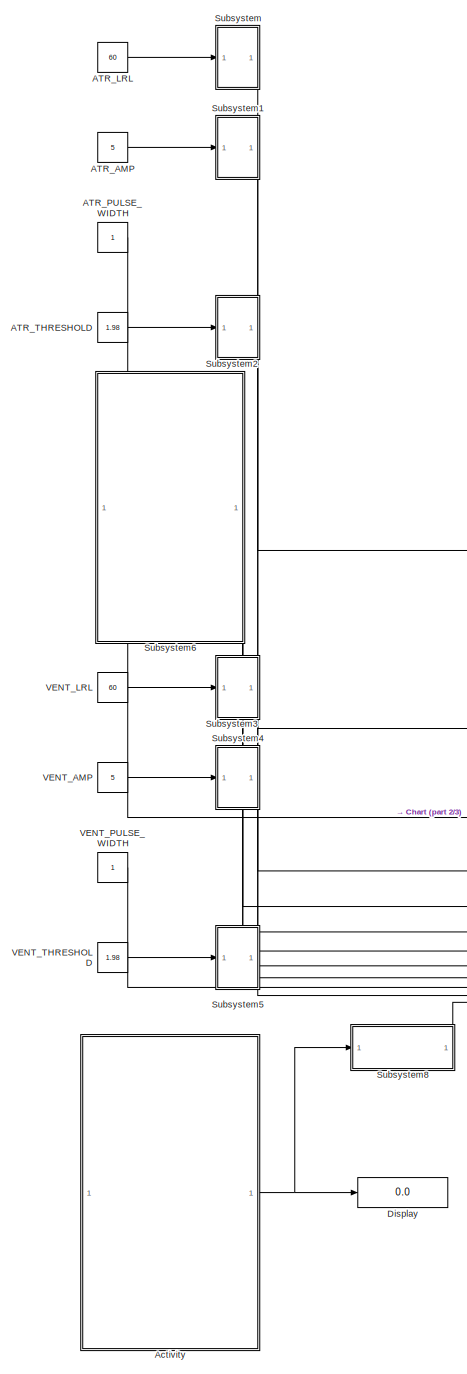
[diagram: root canvas - part 1/3, left side, full height]
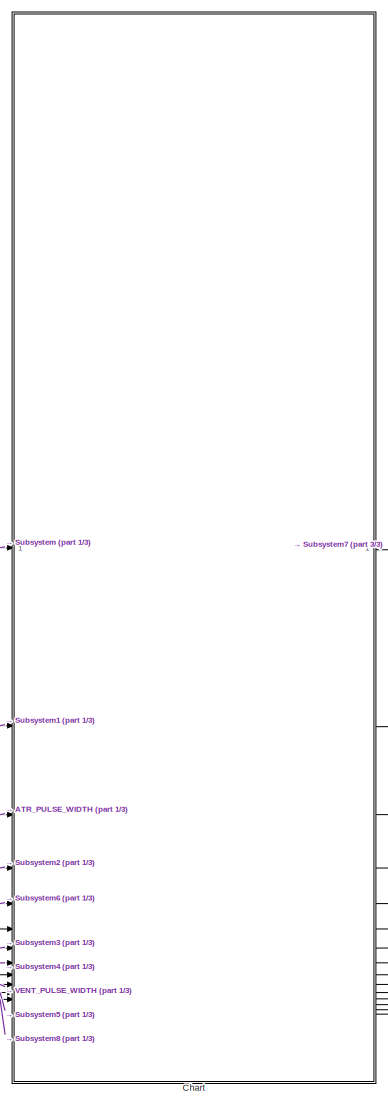
[diagram: root canvas - part 2/3, center side, full height]
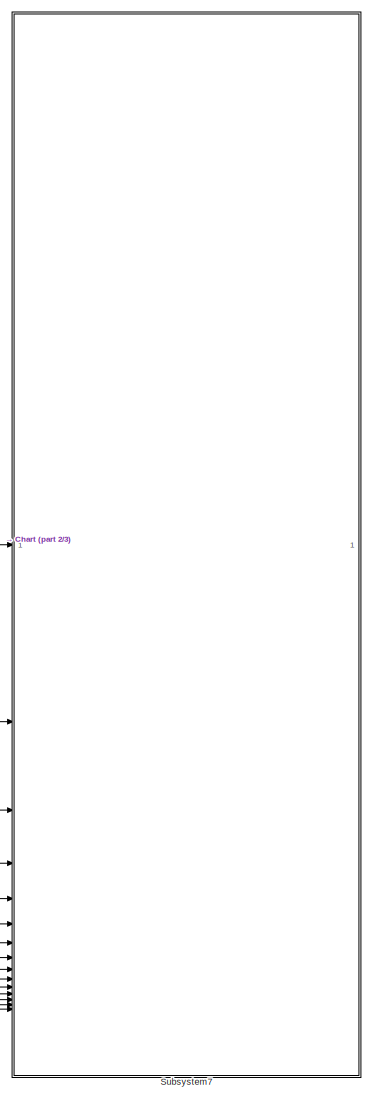
[diagram: root canvas - part 3/3, right side, full height]
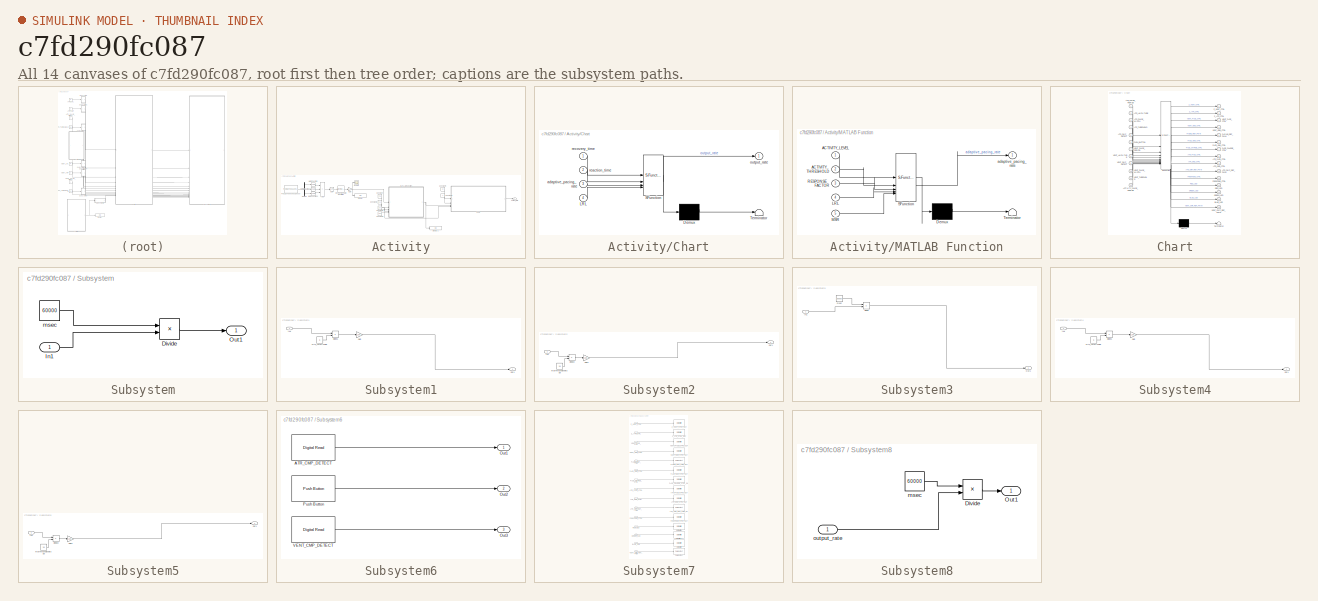
[diagram: thumbnail index - all 14 canvases of the model, root first then tree order]
MODEL slx_c7fd290fc087
KIND model
CONFIG AbsTol = auto
CONFIG EnableMultiTasking = on
CONFIG FixedStep = 1e-3
CONFIG MaxStep = auto
CONFIG MinStep = auto
CONFIG RelTol = 1e-3
CONFIG SampleTimeConstraint = Unconstrained
CONFIG SolverName = FixedStepAuto
CONFIG StartTime = 0.0
CONFIG StopTime = 30
BLOCK [Constant] ATR_AMP
  Value = 5
BLOCK [Constant] ATR_LRL
  Value = 60
BLOCK [Constant] ATR_PULSE_WIDTH
BLOCK [Constant] ATR_THRESHOLD
  Value = 1.98
BLOCK [SubSystem] Activity
BLOCK [Sum] Activity/Add
  IconShape = rectangular
  Inputs = +++
BLOCK [SubSystem] Activity/Chart
  ErrorFcn = Stateflow.Translate.translate
  PermitHierarchicalResolution = ExplicitOnly
  SFBlockType = Chart
  TreatAsAtomicUnit = on
BLOCK [Demux] Activity/Chart/ Demux 
  Outputs = 1
BLOCK [S-Function] Activity/Chart/ SFunction 
  EnableBusSupport = on
  FunctionName = sf_sfun
  PortCounts = [4 2]
  SFcnIsStateOwnerBlock = off
  SFunctionDeploymentMode = off
  Tag = Stateflow S-Function 1
BLOCK [Terminator] Activity/Chart/ Terminator 
BLOCK [Inport] Activity/Chart/LRL
  Port = 4
BLOCK [Inport] Activity/Chart/adaptive_pacing_rate
  Port = 3
BLOCK [Outport] Activity/Chart/output_rate
BLOCK [Inport] Activity/Chart/reaction_time
  Port = 2
BLOCK [Inport] Activity/Chart/recovery_time
BLOCK [Constant] Activity/Constant
  Value = 0.5
BLOCK [Constant] Activity/Constant1
  Value = 16
BLOCK [Constant] Activity/Constant2
  Value = 60
BLOCK [Constant] Activity/Constant3
  Value = 180
BLOCK [Constant] Activity/Constant4
  Value = 10
BLOCK [Constant] Activity/Constant5
BLOCK [Demux] Activity/Demux
  Outputs = 3
BLOCK [Display] Activity/Display
  Decimation = 1
BLOCK [Display] Activity/Display1
  Decimation = 1
BLOCK [Reference] Activity/FXOS8700 6-Axes Sensor  REF=frdmk64flib/FXOS8700 6-Axes Sensor
  SourceBlock = frdmk64flib/FXOS8700 6-Axes Sensor
  SourceType = freedomk64f.fxos8700
BLOCK [Gain] Activity/Gain
  Gain = 50
BLOCK [SubSystem] Activity/MATLAB Function
  ErrorFcn = Stateflow.Translate.translate
  PermitHierarchicalResolution = ExplicitOnly
  SFBlockType = MATLAB Function
  TreatAsAtomicUnit = on
BLOCK [Demux] Activity/MATLAB Function/ Demux 
  Outputs = 1
BLOCK [S-Function] Activity/MATLAB Function/ SFunction 
  EnableBusSupport = on
  FunctionName = sf_sfun
  PortCounts = [5 2]
  SFcnIsStateOwnerBlock = off
  SFunctionDeploymentMode = off
  Tag = Stateflow S-Function 2
BLOCK [Terminator] Activity/MATLAB Function/ Terminator 
BLOCK [Inport] Activity/MATLAB Function/ACTIVITY_LEVEL
BLOCK [Inport] Activity/MATLAB Function/ACTIVITY_THRESHOLD
  Port = 2
BLOCK [Inport] Activity/MATLAB Function/LRL
  Port = 4
BLOCK [Inport] Activity/MATLAB Function/MSR
  Port = 5
BLOCK [Inport] Activity/MATLAB Function/RESPONSE_FACTOR
  Port = 3
BLOCK [Outport] Activity/MATLAB Function/adaptive_pacing_rate
BLOCK [Math] Activity/Math Function
  Operator = square
BLOCK [Math] Activity/Math Function1
  Operator = square
BLOCK [Math] Activity/Math Function2
  Operator = square
BLOCK [Reference] Activity/Moving Standard Deviation  REF=dspstat3/Moving
Standard
Deviation
  SourceBlock = dspstat3/Moving\nStandard\nDeviation
  SourceType = dsp.simulink.MovingStandardDeviation
BLOCK [Scope] Activity/Scope
  Floating = off
  NumInputPorts = 1
  ScopeSpecificationString = Simulink.scopes.TimeScopeBlockCfg('CurrentConfiguration', extmgr.ConfigurationSet(extmgr.Configuration('Core','General UI',true),extmgr.Configuration('Core','Source UI',true),extmgr.Configuration('Sources','WiredSimulink',true),extmgr.Configuration('Visuals','Time Domain',true),extmgr.Configuration('Tools','Plot Navigation',true),extmgr.Configuration('Tools','Measurements',true)),'Version','2024a'...<+1ch>
BLOCK [Sqrt] Activity/Sqrt
BLOCK [Outport] Activity/output_rate
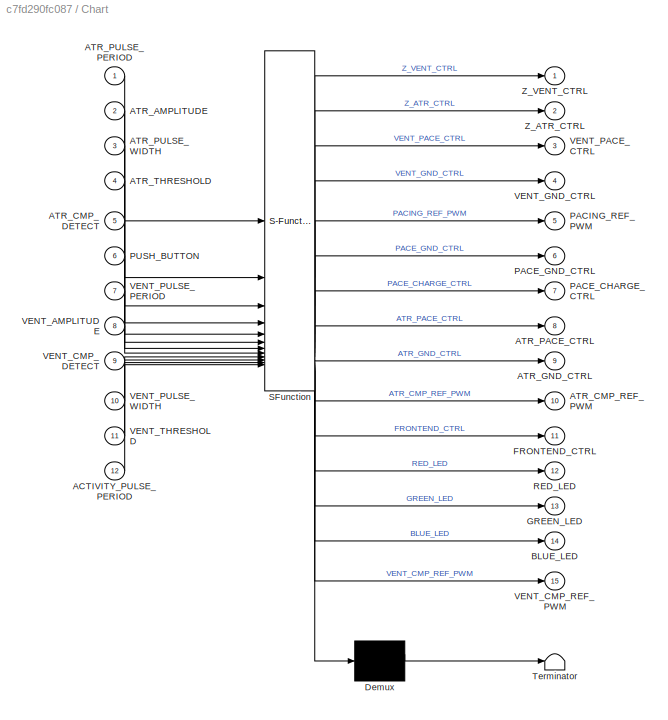
BLOCK [SubSystem] Chart
  ErrorFcn = Stateflow.Translate.translate
  PermitHierarchicalResolution = ExplicitOnly
  PortSchema = {"entries":[{"content":{"sides":[{"content":{"connectorIds":["In1","In2","In3","In4","In5","In6","In9","In7","In8","In10","In11","In12"]},"type":"ConnectorPlacement.EquallySpacedRectSide","uuid":"1d074b9c-7cc8-4198-85a6-5618993573f0"},{"content":{"connectorIds":["Out1","Out2","Out3","Out4","Out5","Out6","Out7","Out8","Out9","Out10","Out11","Out12","Out13","Out14","Out15"],"side":"RIGHT"},"type":"C...<+395ch>
  SFBlockType = Chart
  TreatAsAtomicUnit = on
BLOCK [Demux] Chart/ Demux 
  Outputs = 1
BLOCK [S-Function] Chart/ SFunction 
  EnableBusSupport = on
  FunctionName = sf_sfun
  PortCounts = [12 16]
  SFcnIsStateOwnerBlock = off
  SFunctionDeploymentMode = off
  Tag = Stateflow S-Function 3
BLOCK [Terminator] Chart/ Terminator 
BLOCK [Inport] Chart/ACTIVITY_PULSE_PERIOD
  Port = 12
BLOCK [Inport] Chart/ATR_AMPLITUDE
  Port = 2
BLOCK [Inport] Chart/ATR_CMP_DETECT
  Port = 5
BLOCK [Outport] Chart/ATR_CMP_REF_PWM
  Port = 10
BLOCK [Outport] Chart/ATR_GND_CTRL
  Port = 9
BLOCK [Outport] Chart/ATR_PACE_CTRL
  Port = 8
BLOCK [Inport] Chart/ATR_PULSE_PERIOD
BLOCK [Inport] Chart/ATR_PULSE_WIDTH
  Port = 3
BLOCK [Inport] Chart/ATR_THRESHOLD
  Port = 4
BLOCK [Outport] Chart/BLUE_LED
  Port = 14
BLOCK [Outport] Chart/FRONTEND_CTRL
  Port = 11
BLOCK [Outport] Chart/GREEN_LED
  Port = 13
BLOCK [Outport] Chart/PACE_CHARGE_CTRL
  Port = 7
BLOCK [Outport] Chart/PACE_GND_CTRL
  Port = 6
BLOCK [Outport] Chart/PACING_REF_PWM
  Port = 5
BLOCK [Inport] Chart/PUSH_BUTTON
  Port = 6
BLOCK [Outport] Chart/RED_LED
  Port = 12
BLOCK [Inport] Chart/VENT_AMPLITUDE
  Port = 8
BLOCK [Inport] Chart/VENT_CMP_DETECT
  Port = 9
BLOCK [Outport] Chart/VENT_CMP_REF_PWM
  Port = 15
BLOCK [Outport] Chart/VENT_GND_CTRL
  Port = 4
BLOCK [Outport] Chart/VENT_PACE_CTRL
  Port = 3
BLOCK [Inport] Chart/VENT_PULSE_PERIOD
  Port = 7
BLOCK [Inport] Chart/VENT_PULSE_WIDTH
  Port = 10
BLOCK [Inport] Chart/VENT_THRESHOLD
  Port = 11
BLOCK [Outport] Chart/Z_ATR_CTRL
  Port = 2
BLOCK [Outport] Chart/Z_VENT_CTRL
BLOCK [Display] Display
  Decimation = 1
BLOCK [SubSystem] Subsystem
BLOCK [Product] Subsystem/Divide
  Inputs = */
BLOCK [Inport] Subsystem/In1
BLOCK [Outport] Subsystem/Out1
BLOCK [Constant] Subsystem/msec
  Value = 60000
BLOCK [SubSystem] Subsystem1
BLOCK [Product] Subsystem1/Divide1
  Inputs = */
BLOCK [Gain] Subsystem1/Gain
  Gain = 100
BLOCK [Inport] Subsystem1/In1
BLOCK [Constant] Subsystem1/MAX_AMPLITUDE
  Value = 5
BLOCK [Outport] Subsystem1/Out1
BLOCK [SubSystem] Subsystem2
BLOCK [Product] Subsystem2/Divide2
  Inputs = */
BLOCK [Gain] Subsystem2/Gain1
  Gain = 100
BLOCK [Inport] Subsystem2/In1
BLOCK [Outport] Subsystem2/Out1
BLOCK [Constant] Subsystem2/maxThresholdVoltage
  Value = 3.3
BLOCK [SubSystem] Subsystem3
BLOCK [Product] Subsystem3/Divide
  Inputs = */
BLOCK [Inport] Subsystem3/In1
BLOCK [Outport] Subsystem3/Out1
BLOCK [Constant] Subsystem3/msec
  Value = 60000
BLOCK [SubSystem] Subsystem4
BLOCK [Product] Subsystem4/Divide1
  Inputs = */
BLOCK [Gain] Subsystem4/Gain
  Gain = 100
BLOCK [Inport] Subsystem4/In1
BLOCK [Constant] Subsystem4/MAX_AMPLITUDE
  Value = 5
BLOCK [Outport] Subsystem4/Out1
BLOCK [SubSystem] Subsystem5
BLOCK [Product] Subsystem5/Divide2
  Inputs = */
BLOCK [Gain] Subsystem5/Gain1
  Gain = 100
BLOCK [Inport] Subsystem5/In1
BLOCK [Outport] Subsystem5/Out1
BLOCK [Constant] Subsystem5/maxThresholdVoltage
  Value = 3.3
BLOCK [SubSystem] Subsystem6
BLOCK [Reference] Subsystem6/ATR_CMP_DETECT  REF=frdmk64flib/Digital Read
  SourceBlock = frdmk64flib/Digital Read
  SourceType = freedomk64f.DigitalRead
BLOCK [Outport] Subsystem6/Out1
BLOCK [Outport] Subsystem6/Out2
  Port = 2
BLOCK [Outport] Subsystem6/Out3
  Port = 3
BLOCK [Reference] Subsystem6/Push Button  REF=frdmk64flib/Push Button
  SourceBlock = frdmk64flib/Push Button
  SourceType = freedomk64f.PushButton
BLOCK [Reference] Subsystem6/VENT_CMP_DETECT  REF=frdmk64flib/Digital Read
  SourceBlock = frdmk64flib/Digital Read
  SourceType = freedomk64f.DigitalRead
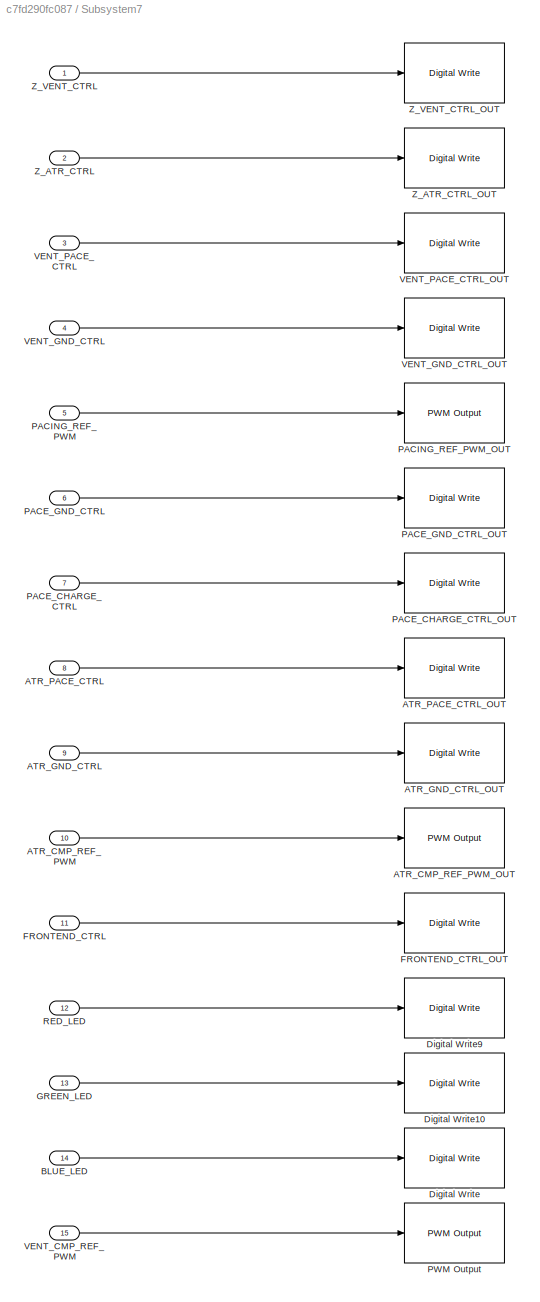
BLOCK [SubSystem] Subsystem7
BLOCK [Inport] Subsystem7/ATR_CMP_REF_PWM
  Port = 10
BLOCK [Reference] Subsystem7/ATR_CMP_REF_PWM_OUT  REF=frdmk64flib/PWM Output
  SourceBlock = frdmk64flib/PWM Output
  SourceType = freedomk64f.PWMOutput
BLOCK [Inport] Subsystem7/ATR_GND_CTRL
  Port = 9
BLOCK [Reference] Subsystem7/ATR_GND_CTRL_OUT  REF=frdmk64flib/Digital Write
  SourceBlock = frdmk64flib/Digital Write
  SourceType = freedomk64f.DigitalWrite
BLOCK [Inport] Subsystem7/ATR_PACE_CTRL
  Port = 8
BLOCK [Reference] Subsystem7/ATR_PACE_CTRL_OUT  REF=frdmk64flib/Digital Write
  SourceBlock = frdmk64flib/Digital Write
  SourceType = freedomk64f.DigitalWrite
BLOCK [Inport] Subsystem7/BLUE_LED
  Port = 14
BLOCK [Reference] Subsystem7/Digital Write  REF=frdmk64flib/Digital Write
  SourceBlock = frdmk64flib/Digital Write
  SourceType = freedomk64f.DigitalWrite
BLOCK [Reference] Subsystem7/Digital Write10  REF=frdmk64flib/Digital Write
  SourceBlock = frdmk64flib/Digital Write
  SourceType = freedomk64f.DigitalWrite
BLOCK [Reference] Subsystem7/Digital Write9  REF=frdmk64flib/Digital Write
  SourceBlock = frdmk64flib/Digital Write
  SourceType = freedomk64f.DigitalWrite
BLOCK [Inport] Subsystem7/FRONTEND_CTRL
  Port = 11
BLOCK [Reference] Subsystem7/FRONTEND_CTRL_OUT  REF=frdmk64flib/Digital Write
  SourceBlock = frdmk64flib/Digital Write
  SourceType = freedomk64f.DigitalWrite
BLOCK [Inport] Subsystem7/GREEN_LED
  Port = 13
BLOCK [Inport] Subsystem7/PACE_CHARGE_CTRL
  Port = 7
BLOCK [Reference] Subsystem7/PACE_CHARGE_CTRL_OUT  REF=frdmk64flib/Digital Write
  SourceBlock = frdmk64flib/Digital Write
  SourceType = freedomk64f.DigitalWrite
BLOCK [Inport] Subsystem7/PACE_GND_CTRL
  Port = 6
BLOCK [Reference] Subsystem7/PACE_GND_CTRL_OUT  REF=frdmk64flib/Digital Write
  SourceBlock = frdmk64flib/Digital Write
  SourceType = freedomk64f.DigitalWrite
BLOCK [Inport] Subsystem7/PACING_REF_PWM
  Port = 5
BLOCK [Reference] Subsystem7/PACING_REF_PWM_OUT  REF=frdmk64flib/PWM Output
  SourceBlock = frdmk64flib/PWM Output
  SourceType = freedomk64f.PWMOutput
BLOCK [Reference] Subsystem7/PWM Output  REF=frdmk64flib/PWM Output
  SourceBlock = frdmk64flib/PWM Output
  SourceType = freedomk64f.PWMOutput
BLOCK [Inport] Subsystem7/RED_LED
  Port = 12
BLOCK [Inport] Subsystem7/VENT_CMP_REF_PWM
  Port = 15
BLOCK [Inport] Subsystem7/VENT_GND_CTRL
  Port = 4
BLOCK [Reference] Subsystem7/VENT_GND_CTRL_OUT  REF=frdmk64flib/Digital Write
  SourceBlock = frdmk64flib/Digital Write
  SourceType = freedomk64f.DigitalWrite
BLOCK [Inport] Subsystem7/VENT_PACE_CTRL
  Port = 3
BLOCK [Reference] Subsystem7/VENT_PACE_CTRL_OUT  REF=frdmk64flib/Digital Write
  SourceBlock = frdmk64flib/Digital Write
  SourceType = freedomk64f.DigitalWrite
BLOCK [Inport] Subsystem7/Z_ATR_CTRL
  Port = 2
BLOCK [Reference] Subsystem7/Z_ATR_CTRL_OUT  REF=frdmk64flib/Digital Write
  SourceBlock = frdmk64flib/Digital Write
  SourceType = freedomk64f.DigitalWrite
BLOCK [Inport] Subsystem7/Z_VENT_CTRL
BLOCK [Reference] Subsystem7/Z_VENT_CTRL_OUT  REF=frdmk64flib/Digital Write
  SourceBlock = frdmk64flib/Digital Write
  SourceType = freedomk64f.DigitalWrite
BLOCK [SubSystem] Subsystem8
BLOCK [Product] Subsystem8/Divide
  Inputs = */
BLOCK [Outport] Subsystem8/Out1
BLOCK [Constant] Subsystem8/msec
  Value = 60000
BLOCK [Inport] Subsystem8/output_rate
BLOCK [Constant] VENT_AMP
  Value = 5
BLOCK [Constant] VENT_LRL
  Value = 60
BLOCK [Constant] VENT_PULSE_WIDTH
BLOCK [Constant] VENT_THRESHOLD
  Value = 1.98
LINE ATR_AMP:1 -> Subsystem1:1
LINE ATR_LRL:1 -> Subsystem:1
LINE ATR_PULSE_WIDTH:1 -> Chart:3
LINE ATR_THRESHOLD:1 -> Subsystem2:1
LINE Activity/Add:1 -> Activity/Sqrt:1
LINE Activity/Chart:1 -> Activity/output_rate:1
LINE Activity/Constant1:1 -> Activity/MATLAB Function:3
NET Activity/Constant2:1 -> Activity/Chart:4, Activity/MATLAB Function:4
LINE Activity/Constant3:1 -> Activity/MATLAB Function:5
LINE Activity/Constant4:1 -> Activity/Chart:1
LINE Activity/Constant5:1 -> Activity/Chart:2
LINE Activity/Constant:1 -> Activity/MATLAB Function:2
LINE Activity/Demux:1 -> Activity/Math Function:1
LINE Activity/Demux:2 -> Activity/Math Function2:1
LINE Activity/Demux:3 -> Activity/Math Function1:1
LINE Activity/FXOS8700 6-Axes Sensor:1 -> Activity/Demux:1
NET Activity/Gain:1 -> Activity/Display:1, Activity/MATLAB Function:1, Activity/Scope:1
NET Activity/MATLAB Function:1 -> Activity/Chart:3, Activity/Display1:1
LINE Activity/Math Function1:1 -> Activity/Add:3
LINE Activity/Math Function2:1 -> Activity/Add:2
LINE Activity/Math Function:1 -> Activity/Add:1
LINE Activity/Moving Standard Deviation:1 -> Activity/Gain:1
LINE Activity/Sqrt:1 -> Activity/Moving Standard Deviation:1
NET Activity:1 -> Display:1, Subsystem8:1
LINE Chart:1 -> Subsystem7:1
LINE Chart:10 -> Subsystem7:10
LINE Chart:11 -> Subsystem7:11
LINE Chart:12 -> Subsystem7:12
LINE Chart:13 -> Subsystem7:13
LINE Chart:14 -> Subsystem7:14
LINE Chart:15 -> Subsystem7:15
LINE Chart:2 -> Subsystem7:2
LINE Chart:3 -> Subsystem7:3
LINE Chart:4 -> Subsystem7:4
LINE Chart:5 -> Subsystem7:5
LINE Chart:6 -> Subsystem7:6
LINE Chart:7 -> Subsystem7:7
LINE Chart:8 -> Subsystem7:8
LINE Chart:9 -> Subsystem7:9
LINE Subsystem/Divide:1 -> Subsystem/Out1:1
LINE Subsystem/In1:1 -> Subsystem/Divide:2
LINE Subsystem/msec:1 -> Subsystem/Divide:1
LINE Subsystem1/Divide1:1 -> Subsystem1/Gain:1
LINE Subsystem1/Gain:1 -> Subsystem1/Out1:1
LINE Subsystem1/In1:1 -> Subsystem1/Divide1:1
LINE Subsystem1/MAX_AMPLITUDE:1 -> Subsystem1/Divide1:2
LINE Subsystem1:1 -> Chart:2
LINE Subsystem2/Divide2:1 -> Subsystem2/Gain1:1
LINE Subsystem2/Gain1:1 -> Subsystem2/Out1:1
LINE Subsystem2/In1:1 -> Subsystem2/Divide2:1
LINE Subsystem2/maxThresholdVoltage:1 -> Subsystem2/Divide2:2
LINE Subsystem2:1 -> Chart:4
LINE Subsystem3/Divide:1 -> Subsystem3/Out1:1
LINE Subsystem3/In1:1 -> Subsystem3/Divide:2
LINE Subsystem3/msec:1 -> Subsystem3/Divide:1
LINE Subsystem3:1 -> Chart:7
LINE Subsystem4/Divide1:1 -> Subsystem4/Gain:1
LINE Subsystem4/Gain:1 -> Subsystem4/Out1:1
LINE Subsystem4/In1:1 -> Subsystem4/Divide1:1
LINE Subsystem4/MAX_AMPLITUDE:1 -> Subsystem4/Divide1:2
LINE Subsystem4:1 -> Chart:8
LINE Subsystem5/Divide2:1 -> Subsystem5/Gain1:1
LINE Subsystem5/Gain1:1 -> Subsystem5/Out1:1
LINE Subsystem5/In1:1 -> Subsystem5/Divide2:1
LINE Subsystem5/maxThresholdVoltage:1 -> Subsystem5/Divide2:2
LINE Subsystem5:1 -> Chart:11
LINE Subsystem6/ATR_CMP_DETECT:1 -> Subsystem6/Out1:1
LINE Subsystem6/Push Button:1 -> Subsystem6/Out2:1
LINE Subsystem6/VENT_CMP_DETECT:1 -> Subsystem6/Out3:1
LINE Subsystem6:1 -> Chart:5
LINE Subsystem6:2 -> Chart:6
LINE Subsystem6:3 -> Chart:9
LINE Subsystem7/ATR_CMP_REF_PWM:1 -> Subsystem7/ATR_CMP_REF_PWM_OUT:1
LINE Subsystem7/ATR_GND_CTRL:1 -> Subsystem7/ATR_GND_CTRL_OUT:1
LINE Subsystem7/ATR_PACE_CTRL:1 -> Subsystem7/ATR_PACE_CTRL_OUT:1
LINE Subsystem7/BLUE_LED:1 -> Subsystem7/Digital Write:1
LINE Subsystem7/FRONTEND_CTRL:1 -> Subsystem7/FRONTEND_CTRL_OUT:1
LINE Subsystem7/GREEN_LED:1 -> Subsystem7/Digital Write10:1
LINE Subsystem7/PACE_CHARGE_CTRL:1 -> Subsystem7/PACE_CHARGE_CTRL_OUT:1
LINE Subsystem7/PACE_GND_CTRL:1 -> Subsystem7/PACE_GND_CTRL_OUT:1
LINE Subsystem7/PACING_REF_PWM:1 -> Subsystem7/PACING_REF_PWM_OUT:1
LINE Subsystem7/RED_LED:1 -> Subsystem7/Digital Write9:1
LINE Subsystem7/VENT_CMP_REF_PWM:1 -> Subsystem7/PWM Output:1
LINE Subsystem7/VENT_GND_CTRL:1 -> Subsystem7/VENT_GND_CTRL_OUT:1
LINE Subsystem7/VENT_PACE_CTRL:1 -> Subsystem7/VENT_PACE_CTRL_OUT:1
LINE Subsystem7/Z_ATR_CTRL:1 -> Subsystem7/Z_ATR_CTRL_OUT:1
LINE Subsystem7/Z_VENT_CTRL:1 -> Subsystem7/Z_VENT_CTRL_OUT:1
LINE Subsystem8/Divide:1 -> Subsystem8/Out1:1
LINE Subsystem8/msec:1 -> Subsystem8/Divide:1
LINE Subsystem8/output_rate:1 -> Subsystem8/Divide:2
LINE Subsystem8:1 -> Chart:12
LINE Subsystem:1 -> Chart:1
LINE VENT_AMP:1 -> Subsystem4:1
LINE VENT_LRL:1 -> Subsystem3:1
LINE VENT_PULSE_WIDTH:1 -> Chart:10
LINE VENT_THRESHOLD:1 -> Subsystem5:1
note: NET lines group one-source signal fan-out (src -> all destinations, sorted); 1:1 wires keep LINE
CHART Activity/Chart states=4 transitions=6
  STATE_LABEL 'IDLE\nentry:\noutput_rate = LRL;'
  STATE_LABEL 'INIT\nentry:\n%The slope of the time response curves\nstep_up = abs((adaptive_pacing_rate - output_rate)/reaction_time);\nstep_down = abs((adaptive_pacing_rate - output_rate)/recovery_time);'
  STATE_LABEL 'STEP_DOWN\nentry:\noutput_rate = output_rate - step_down;'
  STATE_LABEL 'STEP_UP\nentry:\noutput_rate = output_rate + step_up;'
CHART Activity/MATLAB Function states=1 transitions=1
  STATE_LABEL 'eML_blk_kernel()'
  STATE_LABEL 'SCRIPT:\nfunction adaptive_pacing_rate = fcn(ACTIVITY_LEVEL, ACTIVITY_THRESHOLD, RESPONSE_FACTOR, LRL , MSR)\n    if ACTIVITY_LEVEL <= ACTIVITY_THRESHOLD\n        adaptive_pacing_rate = LRL; \n    else\n        slope = 2.5*RESPONSE_FACTOR;\n        b = LRL - (slope*ACTIVITY_THRESHOLD);\n        linear_rate_response = (slope*ACTIVITY_LEVEL) + b;\n        if(linear_rate_response >= MSR)\n           adaptive_...<+113ch>'
CHART Chart states=23 transitions=32
  STATE_LABEL 'AOO\n'
  STATE_LABEL 'ChargeDishcharge\nentry:\n%C22\nATR_PACE_CTRL = 0;\nVENT_PACE_CTRL = 0;\nPACING_REF_PWM = ATR_AMPLITUDE;\nPACE_CHARGE_CTRL = 1;\n%C21\nPACE_GND_CTRL = 1;\nVENT_PACE_CTRL = 0;\nZ_ATR_CTRL = 0;\nZ_VENT_CTRL = 0;\nATR_GND_CTRL = 1;\nVENT_GND_CTRL = 0;\n%LED\nRED_LED = 0;\nGREEN_LED = 0;\nBLUE_LED = 0;\n'
  STATE_LABEL 'AVpacing\nentry:\nPACE_CHARGE_CTRL = 0;\nPACE_GND_CTRL = 1;\nATR_PACE_CTRL = 1;\nATR_GND_CTRL = 0;\nZ_ATR_CTRL = 0;\nZ_VENT_CTRL = 0;\nVENT_GND_CTRL = 0;\nVENT_PACE_CTRL = 0;\nPACING_REF_PWM = ATR_AMPLITUDE;\n'  <repeated x4 — deduplicated; at blocks: Chart>
  STATE_LABEL '[after(ATR_PULSE_WIDTH, msec)]'
  STATE_LABEL '[after(ATR_PULSE_PERIOD-ATR_PULSE_WIDTH, msec)]'
  STATE_LABEL 'ChargeDishcharge\nentry:\n%C22\nATR_PACE_CTRL = 0;\nVENT_PACE_CTRL = 0;\nPACING_REF_PWM = ATR_AMPLITUDE;\nPACE_CHARGE_CTRL = 1;\n%C21\nPACE_GND_CTRL = 1;\nVENT_PACE_CTRL = 0;\nZ_ATR_CTRL = 0;\nZ_VENT_CTRL = 0;\nATR_GND_CTRL = 1;\nVENT_GND_CTRL = 0;\n%LED\nRED_LED = 0;\nGREEN_LED = 0;\nBLUE_LED = 0;\n'
  STATE_LABEL 'AAI'
  STATE_LABEL 'Idle\nentry:\n%Set threshold\nATR_CMP_REF_PWM = ATR_THRESHOLD;\nFRONTEND_CTRL = 1;\nRED_LED = 1;\nGREEN_LED = 0;\nBLUE_LED = 0;\n'
  STATE_LABEL 'ChargeDischarge\nentry:\n%C22\nATR_PACE_CTRL = 0;\nVENT_PACE_CTRL = 0;\nPACING_REF_PWM = ATR_AMPLITUDE;\nPACE_CHARGE_CTRL = 1;\n%C21\nPACE_GND_CTRL = 1;\nVENT_PACE_CTRL = 0;\nZ_ATR_CTRL = 0;\nZ_VENT_CTRL = 0;\nATR_GND_CTRL = 1;\nVENT_GND_CTRL = 0;\n'
  STATE_LABEL 'after(5,msec)[ATR_CMP_DETECT == 1]'
  STATE_LABEL '[after(ATR_PULSE_PERIOD-ATR_PULSE_WIDTH,msec)]'
  STATE_LABEL '[after(ATR_PULSE_WIDTH, msec)]'
  STATE_LABEL 'Idle\nentry:\n%Set threshold\nATR_CMP_REF_PWM = ATR_THRESHOLD;\nFRONTEND_CTRL = 1;\nRED_LED = 1;\nGREEN_LED = 0;\nBLUE_LED = 0;\n'
  STATE_LABEL 'ChargeDischarge\nentry:\n%C22\nATR_PACE_CTRL = 0;\nVENT_PACE_CTRL = 0;\nPACING_REF_PWM = ATR_AMPLITUDE;\nPACE_CHARGE_CTRL = 1;\n%C21\nPACE_GND_CTRL = 1;\nVENT_PACE_CTRL = 0;\nZ_ATR_CTRL = 0;\nZ_VENT_CTRL = 0;\nATR_GND_CTRL = 1;\nVENT_GND_CTRL = 0;\n'
  STATE_LABEL 'VOO'
  STATE_LABEL 'Pacing\nentry:\nPACE_CHARGE_CTRL=0;\nPACE_GND_CTRL=1;\nATR_PACE_CTRL=0;\nATR_GND_CTRL=0;\nZ_ATR_CTRL=0;\nZ_VENT_CTRL=0;\nVENT_GND_CTRL=0;\nVENT_PACE_CTRL=1;\n'
  STATE_LABEL 'Charging\nentry:\nATR_PACE_CTRL=0;\nVENT_PACE_CTRL=0;\nPACING_REF_PWM=VENT_AMPLITUDE;\nPACE_CHARGE_CTRL=1;\nRED_LED = 0;\nGREEN_LED = 1;\nBLUE_LED = 0;'
  STATE_LABEL 'Discharging\nentry:\nPACE_GND_CTRL=1;\nVENT_PACE_CTRL=0;\nZ_ATR_CTRL=0;\nZ_VENT_CTRL=0;\nATR_PACE_CTRL=0;\nATR_GND_CTRL=0;\nVENT_GND_CTRL=1;\n'
  STATE_LABEL '[after(VENT_PULSE_PERIOD,msec)]'
  STATE_LABEL '[after(VENT_PULSE_WIDTH,msec)]'
  STATE_LABEL 'Pacing\nentry:\nPACE_CHARGE_CTRL=0;\nPACE_GND_CTRL=1;\nATR_PACE_CTRL=0;\nATR_GND_CTRL=0;\nZ_ATR_CTRL=0;\nZ_VENT_CTRL=0;\nVENT_GND_CTRL=0;\nVENT_PACE_CTRL=1;\n'
  STATE_LABEL 'Charging\nentry:\nATR_PACE_CTRL=0;\nVENT_PACE_CTRL=0;\nPACING_REF_PWM=VENT_AMPLITUDE;\nPACE_CHARGE_CTRL=1;\nRED_LED = 0;\nGREEN_LED = 1;\nBLUE_LED = 0;'
  STATE_LABEL 'Discharging\nentry:\nPACE_GND_CTRL=1;\nVENT_PACE_CTRL=0;\nZ_ATR_CTRL=0;\nZ_VENT_CTRL=0;\nATR_PACE_CTRL=0;\nATR_GND_CTRL=0;\nVENT_GND_CTRL=1;\n'
  STATE_LABEL 'VVI'
  STATE_LABEL 'Initialization\nentry:\nFRONTEND_CTRL = 1;\nVENT_CMP_REF_PWM = VENT_THRESHOLD;\nRED_LED = 1;\nGREEN_LED = 1;\nBLUE_LED = 0;'
  STATE_LABEL 'Pacing\nentry:\nPACE_CHARGE_CTRL=0;\nPACE_GND_CTRL=1;\nATR_PACE_CTRL=0;\nATR_GND_CTRL=0;\nZ_ATR_CTRL=0;\nZ_VENT_CTRL=0;\nVENT_GND_CTRL=0;\nVENT_PACE_CTRL=1;\n'
  STATE_LABEL 'Charging\nentry:\nATR_PACE_CTRL=0;\nVENT_PACE_CTRL=0;\nPACING_REF_PWM=VENT_AMPLITUDE;\nPACE_CHARGE_CTRL=1;\n'
  STATE_LABEL 'Discharging\nentry:\nPACE_GND_CTRL=1;\nVENT_PACE_CTRL=0;\nZ_ATR_CTRL=0;\nZ_VENT_CTRL=0;\nATR_PACE_CTRL=0;\nATR_GND_CTRL=0;\nVENT_GND_CTRL=1;\n'
  STATE_LABEL 'after(5,msec)[VENT_CMP_DETECT == 1]'
  STATE_LABEL '[after(VENT_PULSE_PERIOD-VENT_PULSE_WIDTH,msec)]'
  STATE_LABEL '[after(VENT_PULSE_WIDTH,msec)]'
  STATE_LABEL 'Initialization\nentry:\nFRONTEND_CTRL = 1;\nVENT_CMP_REF_PWM = VENT_THRESHOLD;\nRED_LED = 1;\nGREEN_LED = 1;\nBLUE_LED = 0;'
  STATE_LABEL 'Pacing\nentry:\nPACE_CHARGE_CTRL=0;\nPACE_GND_CTRL=1;\nATR_PACE_CTRL=0;\nATR_GND_CTRL=0;\nZ_ATR_CTRL=0;\nZ_VENT_CTRL=0;\nVENT_GND_CTRL=0;\nVENT_PACE_CTRL=1;\n'
  STATE_LABEL 'Charging\nentry:\nATR_PACE_CTRL=0;\nVENT_PACE_CTRL=0;\nPACING_REF_PWM=VENT_AMPLITUDE;\nPACE_CHARGE_CTRL=1;\n'
  STATE_LABEL 'Discharging\nentry:\nPACE_GND_CTRL=1;\nVENT_PACE_CTRL=0;\nZ_ATR_CTRL=0;\nZ_VENT_CTRL=0;\nATR_PACE_CTRL=0;\nATR_GND_CTRL=0;\nVENT_GND_CTRL=1;\n'
  STATE_LABEL 'AOOR\n\n'
  STATE_LABEL 'ChargeDishcharge\nentry:\n%C22\nATR_PACE_CTRL = 0;\nVENT_PACE_CTRL = 0;\nPACING_REF_PWM = ATR_AMPLITUDE;\nPACE_CHARGE_CTRL = 1;\n%C21\nPACE_GND_CTRL = 1;\nVENT_PACE_CTRL = 0;\nZ_ATR_CTRL = 0;\nZ_VENT_CTRL = 0;\nATR_GND_CTRL = 1;\nVENT_GND_CTRL = 0;\n%LED\nRED_LED = 0;\nGREEN_LED = 0;\nBLUE_LED = 1;\n'
CHART  states=0 transitions=0
CHART  states=0 transitions=0
CHART  states=0 transitions=0
